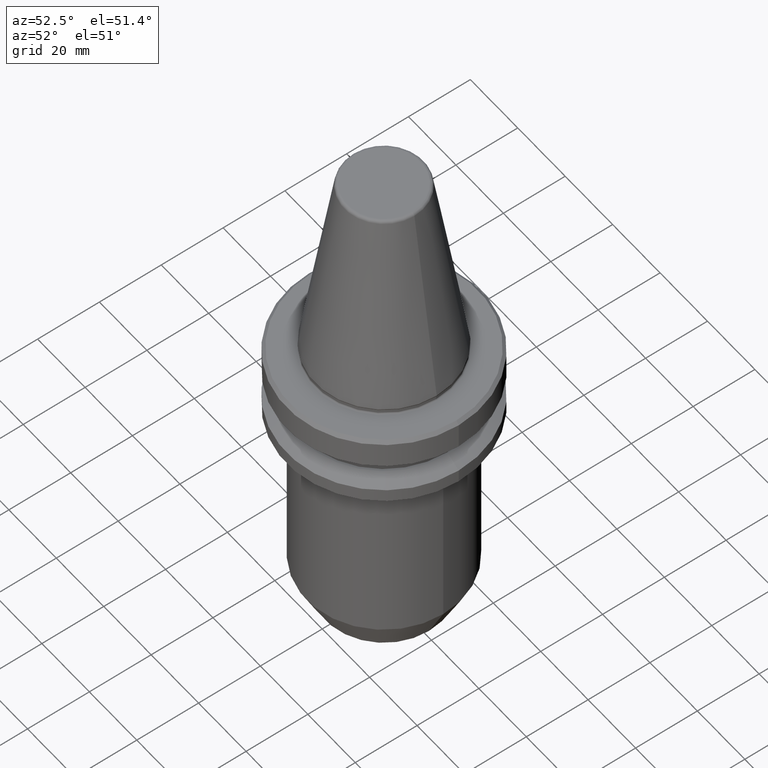
[diagram: clean part render]
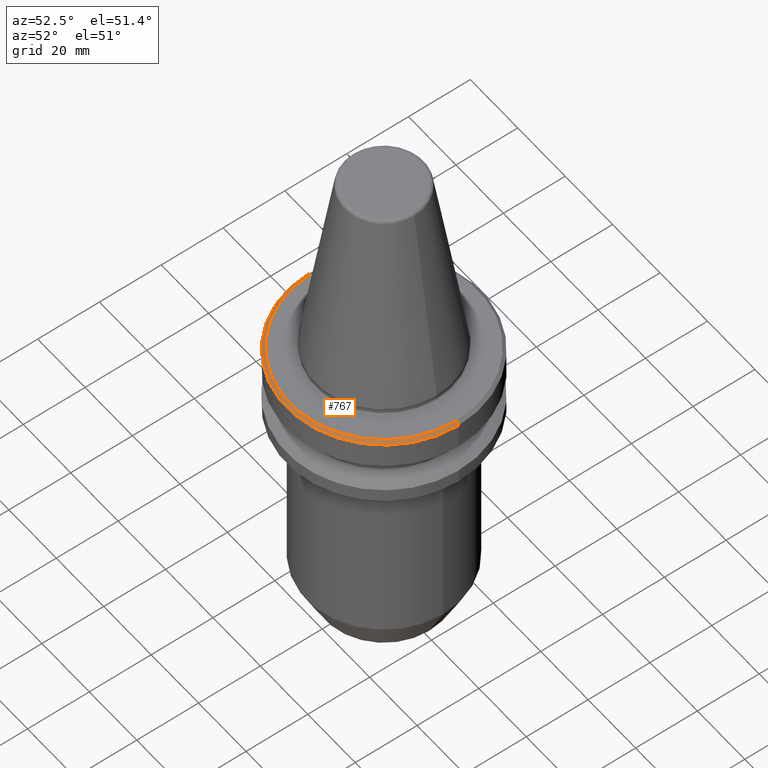
[diagram: same view with one face highlighted and labeled with its STEP entity id]
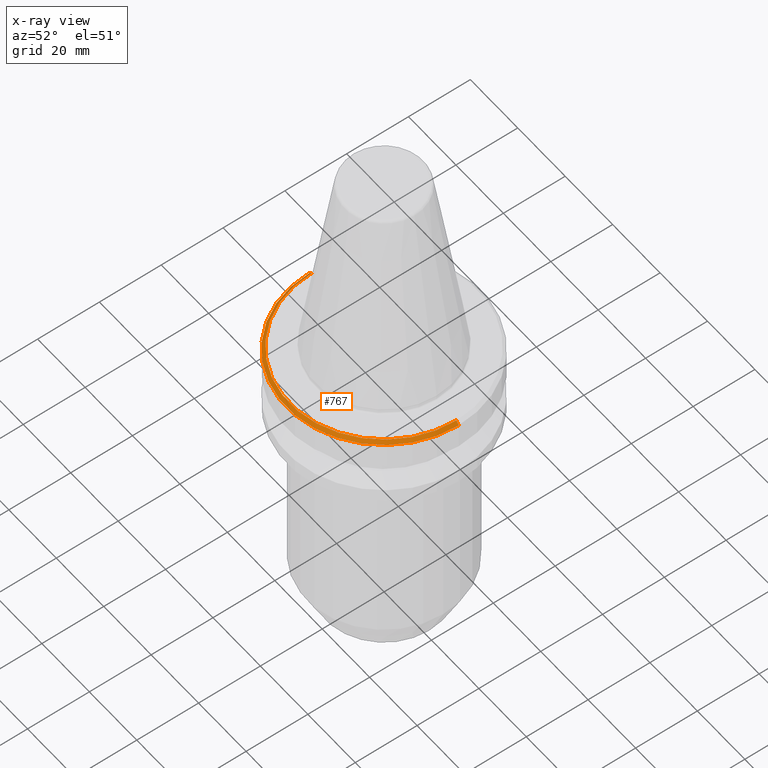
[diagram: x-ray of the same camera — body ghosted, the highlighted face saturated]
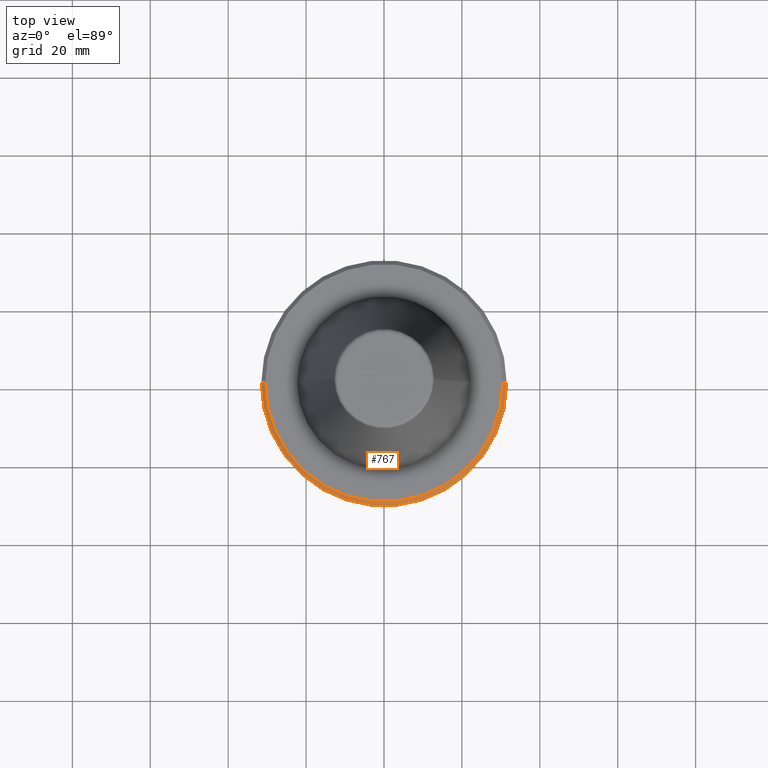
[diagram: same view with one face highlighted and labeled with its STEP entity id]
A machine part, auxiliary view. The second image highlights one B-rep face of the part: STEP entity #767.
The next image is the same camera in x-ray: the body ghosted, the highlighted face saturated — about 0% of this face is hidden behind the body in this view.
A second angle (top view) of the same face is appended — the face is thin or edge-on in the first view.
In plain terms, the highlighted conical surface has half-angle 45 deg.
Its self-contained STEP definition (entity closure, byte-faithful):
#7 = AXIS2_PLACEMENT_3D ( 'NONE', #580, #63, #651 ) ;
#41 = AXIS2_PLACEMENT_3D ( 'NONE', #365, #906, #447 ) ;
#46 = VERTEX_POINT ( 'NONE', #1030 ) ;
#61 = VECTOR ( 'NONE', #492, 1000.000000000000000 ) ;
#63 = DIRECTION ( 'NONE',  ( -0.0000000000000000000, -0.0000000000000000000, 1.000000000000000000 ) ) ;
#71 = VERTEX_POINT ( 'NONE', #367 ) ;
#114 = AXIS2_PLACEMENT_3D ( 'NONE', #720, #798, #154 ) ;
#154 = DIRECTION ( 'NONE',  ( -1.000000000000000000, 0.0000000000000000000, 0.0000000000000000000 ) ) ;
#186 = VERTEX_POINT ( 'NONE', #790 ) ;
#214 = CONICAL_SURFACE ( 'NONE', #114, 31.49999999999986100, 0.7853981633974482800 ) ;
#251 = LINE ( 'NONE', #834, #1047 ) ;
#345 = ORIENTED_EDGE ( 'NONE', *, *, #882, .F. ) ;
#349 = ORIENTED_EDGE ( 'NONE', *, *, #776, .T. ) ;
#365 = CARTESIAN_POINT ( 'NONE',  ( 0.0000000000000000000, 0.0000000000000000000, -1.311286788340082500 ) ) ;
#367 = CARTESIAN_POINT ( 'NONE',  ( 30.49999999999986100, 3.796405077356777800E-015, -1.311286788340082500 ) ) ;
#402 = ORIENTED_EDGE ( 'NONE', *, *, #1021, .F. ) ;
#409 = FACE_OUTER_BOUND ( 'NONE', #886, .T. ) ;
#427 = VERTEX_POINT ( 'NONE', #613 ) ;
#443 = CIRCLE ( 'NONE', #7, 31.49999999999986100 ) ;
#447 = DIRECTION ( 'NONE',  ( 1.000000000000000000, 0.0000000000000000000, 0.0000000000000000000 ) ) ;
#492 = DIRECTION ( 'NONE',  ( -0.7071067811865474600, 0.0000000000000000000, -0.7071067811865475700 ) ) ;
#580 = CARTESIAN_POINT ( 'NONE',  ( 0.0000000000000000000, 0.0000000000000000000, -2.311286788340083400 ) ) ;
#608 = DIRECTION ( 'NONE',  ( 0.7071067811865474600, 8.659560562354931600E-017, -0.7071067811865475700 ) ) ;
#613 = CARTESIAN_POINT ( 'NONE',  ( -31.49999999999986100, 3.857637417314145300E-015, -2.311286788340083400 ) ) ;
#651 = DIRECTION ( 'NONE',  ( 1.000000000000000000, 0.0000000000000000000, 0.0000000000000000000 ) ) ;
#720 = CARTESIAN_POINT ( 'NONE',  ( 0.0000000000000000000, 0.0000000000000000000, -2.311286788340083400 ) ) ;
#733 = EDGE_CURVE ( 'NONE', #186, #427, #900, .T. ) ;
#767 = ADVANCED_FACE ( 'NONE', ( #409 ), #214, .T. ) ;
#776 = EDGE_CURVE ( 'NONE', #427, #46, #443, .T. ) ;
#790 = CARTESIAN_POINT ( 'NONE',  ( -30.49999999999986100, 0.0000000000000000000, -1.311286788340082500 ) ) ;
#798 = DIRECTION ( 'NONE',  ( 0.0000000000000000000, 0.0000000000000000000, -1.000000000000000000 ) ) ;
#834 = CARTESIAN_POINT ( 'NONE',  ( 31.49999999999986100, 3.857637417314145300E-015, -2.311286788340083400 ) ) ;
#882 = EDGE_CURVE ( 'NONE', #186, #71, #1044, .T. ) ;
#886 = EDGE_LOOP ( 'NONE', ( #402, #345, #961, #349 ) ) ;
#900 = LINE ( 'NONE', #1013, #61 ) ;
#906 = DIRECTION ( 'NONE',  ( -0.0000000000000000000, -0.0000000000000000000, 1.000000000000000000 ) ) ;
#961 = ORIENTED_EDGE ( 'NONE', *, *, #733, .T. ) ;
#1013 = CARTESIAN_POINT ( 'NONE',  ( -31.49999999999986100, 0.0000000000000000000, -2.311286788340083400 ) ) ;
#1021 = EDGE_CURVE ( 'NONE', #71, #46, #251, .T. ) ;
#1030 = CARTESIAN_POINT ( 'NONE',  ( 31.49999999999986100, 0.0000000000000000000, -2.311286788340083400 ) ) ;
#1044 = CIRCLE ( 'NONE', #41, 30.49999999999986100 ) ;
#1047 = VECTOR ( 'NONE', #608, 1000.000000000000000 ) ;